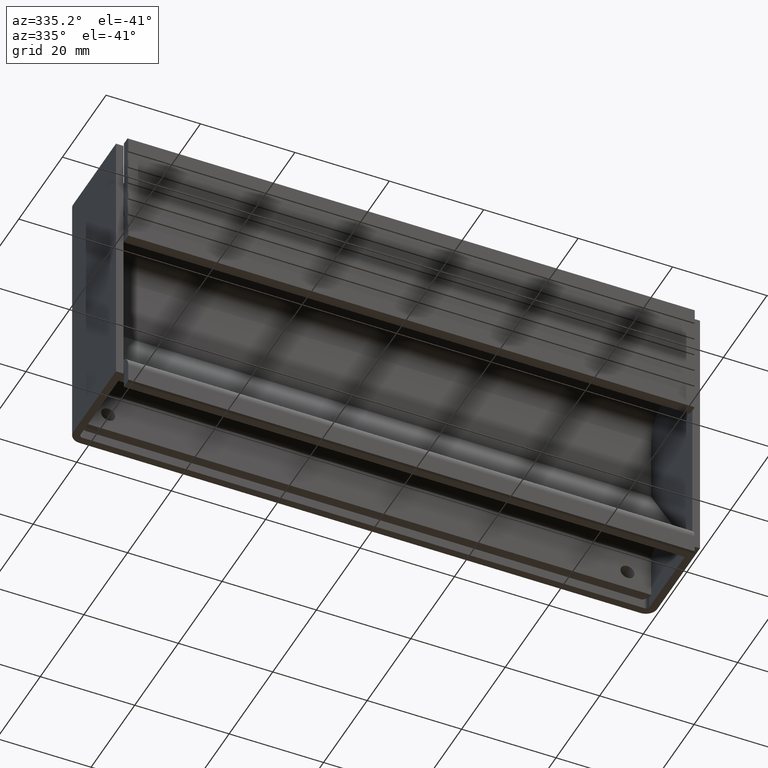
[diagram: clean part render]
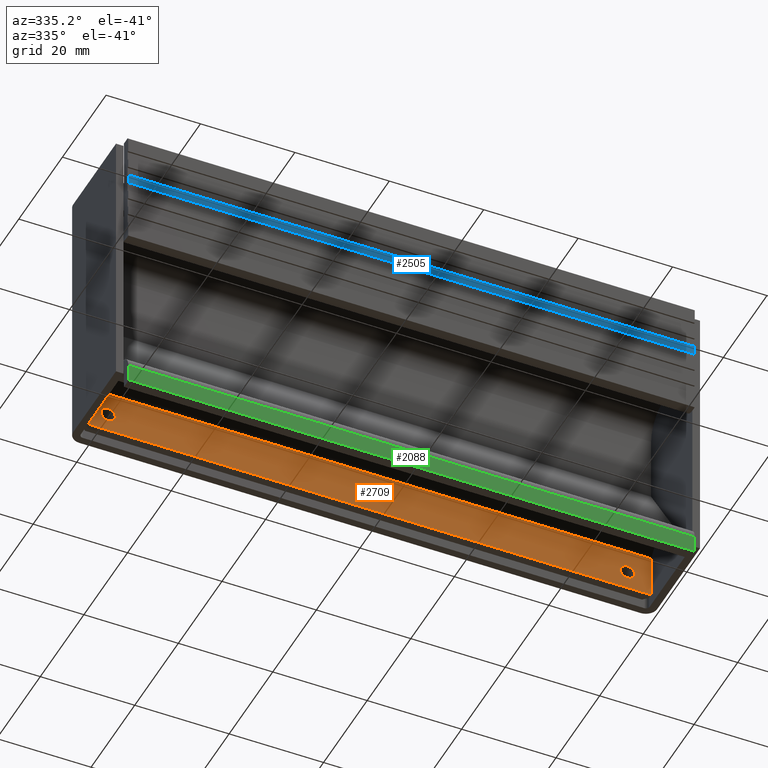
[diagram: same view with three faces highlighted in distinct colors, each labeled with its STEP entity id]
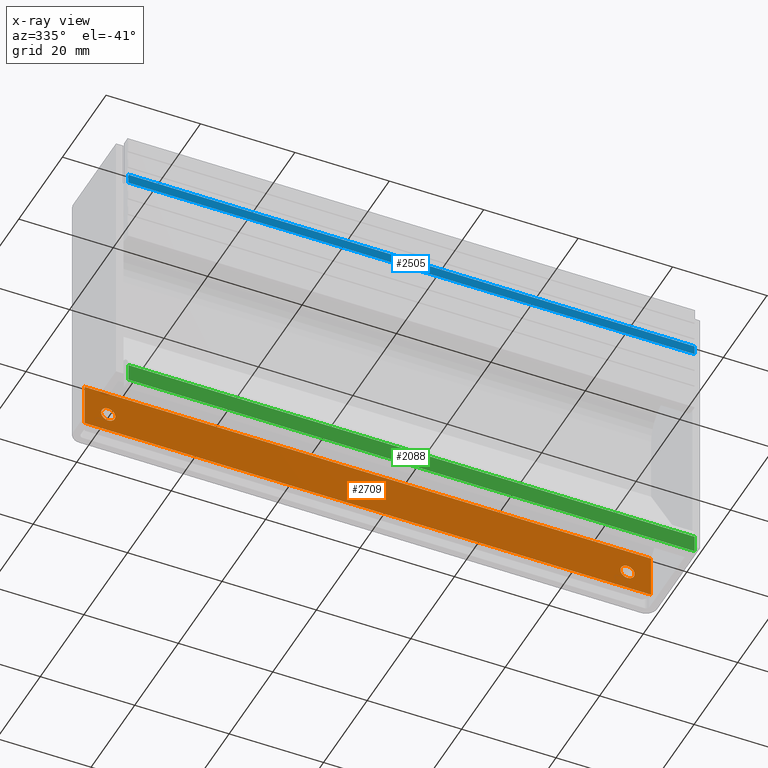
[diagram: x-ray of the same camera — body ghosted, the three highlighted faces saturated]
A machine part, auxiliary view with three faces highlighted in distinct colors.
The next image is the same camera in x-ray (body ghosted, the three faces saturated) — at least one of them is partly hidden behind the body in this view.
Their STEP definitions:

[orange] entity #2709 — the highlighted face is a freeform B-spline surface patch.
#278=CARTESIAN_POINT('',(-53.504623999473040,18.0,8.882311355484024));
#279=VERTEX_POINT('',#278);
#285=CARTESIAN_POINT('',(-55.0,18.0,10.499999999999901));
#286=VERTEX_POINT('',#285);
#287=CARTESIAN_POINT('',(-53.504623999473040,18.0,8.882311355484024));
#288=CARTESIAN_POINT('',(-53.500000000000007,18.0,8.941064838560001));
#289=CARTESIAN_POINT('',(-53.500000000000000,18.0,8.999999999999901));
#290=CARTESIAN_POINT('',(-53.500000000000007,18.000000000000007,10.499999999999901));
#291=CARTESIAN_POINT('',(-55.0,18.0,10.499999999999901));
#299=(BOUNDED_CURVE()B_SPLINE_CURVE(2,(#287,#288,#289,#290,#291),.UNSPECIFIED.,.F.,.U.)B_SPLINE_CURVE_WITH_KNOTS((3,2,3),(0.736331300420894,0.750000000000000,1.0),.UNSPECIFIED.)CURVE()GEOMETRIC_REPRESENTATION_ITEM()RATIONAL_B_SPLINE_CURVE((0.969723355729653,0.983986122333126,1.0,0.707106781186548,1.0))REPRESENTATION_ITEM(''));
#300=EDGE_CURVE('',#279,#286,#299,.T.);
#302=CARTESIAN_POINT('',(-56.495376000526960,18.0,9.117688644515775));
#303=VERTEX_POINT('',#302);
#304=CARTESIAN_POINT('',(-55.0,18.0,10.499999999999901));
#305=CARTESIAN_POINT('',(-56.386585735768264,18.000000000000004,10.499999999999901));
#306=CARTESIAN_POINT('',(-56.495376000526953,18.000000000000004,9.117688644515775));
#314=(BOUNDED_CURVE()B_SPLINE_CURVE(2,(#304,#305,#306),.UNSPECIFIED.,.F.,.U.)B_SPLINE_CURVE_WITH_KNOTS((3,3),(0.0,0.236331300420894),.UNSPECIFIED.)CURVE()GEOMETRIC_REPRESENTATION_ITEM()RATIONAL_B_SPLINE_CURVE((1.0,0.723120658853421,0.969723355729654))REPRESENTATION_ITEM(''));
#315=EDGE_CURVE('',#286,#303,#314,.T.);
#361=CARTESIAN_POINT('',(-55.0,18.0,7.499999999999901));
#362=VERTEX_POINT('',#361);
#363=CARTESIAN_POINT('',(-56.495376000526960,17.999999999999996,9.117688644515775));
#364=CARTESIAN_POINT('',(-56.500000000000000,18.000000000000004,9.058935161439800));
#365=CARTESIAN_POINT('',(-56.500000000000000,18.0,8.999999999999901));
#366=CARTESIAN_POINT('',(-56.500000000000000,18.000000000000007,7.499999999999901));
#367=CARTESIAN_POINT('',(-55.0,18.0,7.499999999999901));
#375=(BOUNDED_CURVE()B_SPLINE_CURVE(2,(#363,#364,#365,#366,#367),.UNSPECIFIED.,.F.,.U.)B_SPLINE_CURVE_WITH_KNOTS((3,2,3),(0.236331300420894,0.250000000000000,0.500000000000000),.UNSPECIFIED.)CURVE()GEOMETRIC_REPRESENTATION_ITEM()RATIONAL_B_SPLINE_CURVE((0.969723355729653,0.983986122333127,1.0,0.707106781186548,1.0))REPRESENTATION_ITEM(''));
#376=EDGE_CURVE('',#303,#362,#375,.T.);
#378=CARTESIAN_POINT('',(-55.0,18.0,7.499999999999901));
#379=CARTESIAN_POINT('',(-53.613414264231757,18.000000000000004,7.499999999999900));
#380=CARTESIAN_POINT('',(-53.504623999473040,18.000000000000004,8.882311355484024));
#388=(BOUNDED_CURVE()B_SPLINE_CURVE(2,(#378,#379,#380),.UNSPECIFIED.,.F.,.U.)B_SPLINE_CURVE_WITH_KNOTS((3,3),(0.500000000000000,0.736331300420893),.UNSPECIFIED.)CURVE()GEOMETRIC_REPRESENTATION_ITEM()RATIONAL_B_SPLINE_CURVE((1.0,0.723120658853422,0.969723355729652))REPRESENTATION_ITEM(''));
#389=EDGE_CURVE('',#362,#279,#388,.T.);
#460=CARTESIAN_POINT('',(56.495376000526960,18.0,8.882311355484024));
#461=VERTEX_POINT('',#460);
#467=CARTESIAN_POINT('',(55.0,18.0,10.499999999999901));
#468=VERTEX_POINT('',#467);
#469=CARTESIAN_POINT('',(56.495376000526953,18.0,8.882311355484024));
#470=CARTESIAN_POINT('',(56.500000000000000,18.0,8.941064838560001));
#471=CARTESIAN_POINT('',(56.500000000000000,18.0,8.999999999999901));
#472=CARTESIAN_POINT('',(56.500000000000000,18.000000000000007,10.499999999999901));
#473=CARTESIAN_POINT('',(55.0,18.0,10.499999999999901));
#481=(BOUNDED_CURVE()B_SPLINE_CURVE(2,(#469,#470,#471,#472,#473),.UNSPECIFIED.,.F.,.U.)B_SPLINE_CURVE_WITH_KNOTS((3,2,3),(0.736331300420894,0.750000000000000,1.0),.UNSPECIFIED.)CURVE()GEOMETRIC_REPRESENTATION_ITEM()RATIONAL_B_SPLINE_CURVE((0.969723355729653,0.983986122333126,1.0,0.707106781186548,1.0))REPRESENTATION_ITEM(''));
#482=EDGE_CURVE('',#461,#468,#481,.T.);
#484=CARTESIAN_POINT('',(53.504623999473040,18.0,9.117688644515777));
#485=VERTEX_POINT('',#484);
#486=CARTESIAN_POINT('',(55.0,18.0,10.499999999999901));
#487=CARTESIAN_POINT('',(53.613414264231743,17.999999999999993,10.499999999999901));
#488=CARTESIAN_POINT('',(53.504623999473040,18.0,9.117688644515777));
#496=(BOUNDED_CURVE()B_SPLINE_CURVE(2,(#486,#487,#488),.UNSPECIFIED.,.F.,.U.)B_SPLINE_CURVE_WITH_KNOTS((3,3),(0.0,0.236331300420894),.UNSPECIFIED.)CURVE()GEOMETRIC_REPRESENTATION_ITEM()RATIONAL_B_SPLINE_CURVE((1.0,0.723120658853421,0.969723355729653))REPRESENTATION_ITEM(''));
#497=EDGE_CURVE('',#468,#485,#496,.T.);
#543=CARTESIAN_POINT('',(55.0,18.0,7.499999999999901));
#544=VERTEX_POINT('',#543);
#545=CARTESIAN_POINT('',(53.504623999473040,17.999999999999996,9.117688644515777));
#546=CARTESIAN_POINT('',(53.500000000000007,17.999999999999996,9.058935161439802));
#547=CARTESIAN_POINT('',(53.500000000000000,18.0,8.999999999999901));
#548=CARTESIAN_POINT('',(53.500000000000007,18.000000000000007,7.499999999999901));
#549=CARTESIAN_POINT('',(55.0,18.0,7.499999999999901));
#557=(BOUNDED_CURVE()B_SPLINE_CURVE(2,(#545,#546,#547,#548,#549),.UNSPECIFIED.,.F.,.U.)B_SPLINE_CURVE_WITH_KNOTS((3,2,3),(0.236331300420894,0.250000000000000,0.500000000000000),.UNSPECIFIED.)CURVE()GEOMETRIC_REPRESENTATION_ITEM()RATIONAL_B_SPLINE_CURVE((0.969723355729653,0.983986122333126,1.0,0.707106781186548,1.0))REPRESENTATION_ITEM(''));
#558=EDGE_CURVE('',#485,#544,#557,.T.);
#560=CARTESIAN_POINT('',(55.0,18.0,7.499999999999901));
#561=CARTESIAN_POINT('',(56.386585735768243,18.000000000000004,7.499999999999900));
#562=CARTESIAN_POINT('',(56.495376000526960,18.000000000000004,8.882311355484024));
#570=(BOUNDED_CURVE()B_SPLINE_CURVE(2,(#560,#561,#562),.UNSPECIFIED.,.F.,.U.)B_SPLINE_CURVE_WITH_KNOTS((3,3),(0.500000000000000,0.736331300420893),.UNSPECIFIED.)CURVE()GEOMETRIC_REPRESENTATION_ITEM()RATIONAL_B_SPLINE_CURVE((1.0,0.723120658853422,0.969723355729652))REPRESENTATION_ITEM(''));
#571=EDGE_CURVE('',#544,#461,#570,.T.);
#1319=CARTESIAN_POINT('',(60.0,18.0,14.223929999999999));
#1320=VERTEX_POINT('',#1319);
#1326=CARTESIAN_POINT('',(60.0,18.0,5.0));
#1327=VERTEX_POINT('',#1326);
#1328=CARTESIAN_POINT('',(60.0,18.0,14.223929999999999));
#1329=CARTESIAN_POINT('',(60.0,18.0,5.0));
#1330=QUASI_UNIFORM_CURVE('',1,(#1328,#1329),.UNSPECIFIED.,.F.,.U.);
#1331=EDGE_CURVE('',#1320,#1327,#1330,.T.);
#1360=CARTESIAN_POINT('',(-60.0,18.0,5.0));
#1361=VERTEX_POINT('',#1360);
#1367=CARTESIAN_POINT('',(-60.0,18.0,14.223929999999999));
#1368=VERTEX_POINT('',#1367);
#1369=CARTESIAN_POINT('',(-60.0,18.0,14.223929999999999));
#1370=CARTESIAN_POINT('',(-60.0,18.0,5.0));
#1371=QUASI_UNIFORM_CURVE('',1,(#1369,#1370),.UNSPECIFIED.,.F.,.U.);
#1372=EDGE_CURVE('',#1368,#1361,#1371,.T.);
#1938=CARTESIAN_POINT('',(-60.0,18.0,5.0));
#1939=CARTESIAN_POINT('',(60.0,18.0,5.0));
#1940=QUASI_UNIFORM_CURVE('',1,(#1938,#1939),.UNSPECIFIED.,.F.,.U.);
#1941=EDGE_CURVE('',#1361,#1327,#1940,.T.);
#1960=CARTESIAN_POINT('',(-60.0,18.0,14.223929999999999));
#1961=CARTESIAN_POINT('',(60.0,18.0,14.223929999999999));
#1962=QUASI_UNIFORM_CURVE('',1,(#1960,#1961),.UNSPECIFIED.,.F.,.U.);
#1963=EDGE_CURVE('',#1368,#1320,#1962,.T.);
#2686=CARTESIAN_POINT('',(-65.993999767416696,18.0,14.684665718560510));
#2687=CARTESIAN_POINT('',(-65.993999767416696,18.0,4.539264446376211));
#2688=CARTESIAN_POINT('',(65.994002986067528,18.0,14.684665718560510));
#2689=CARTESIAN_POINT('',(65.994002986067528,18.0,4.539264446376211));
#2690=B_SPLINE_SURFACE_WITH_KNOTS('',1,1,((#2686,#2688),(#2687,#2689)),.UNSPECIFIED.,.F.,.F.,.U.,(2,2),(2,2),(0.0,10.145401272184300),(0.0,131.988002753484210),.UNSPECIFIED.);
#2691=ORIENTED_EDGE('',*,*,#1331,.F.);
#2692=ORIENTED_EDGE('',*,*,#1963,.F.);
#2693=ORIENTED_EDGE('',*,*,#1372,.T.);
#2694=ORIENTED_EDGE('',*,*,#1941,.T.);
#2695=EDGE_LOOP('',(#2691,#2692,#2693,#2694));
#2696=FACE_OUTER_BOUND('',#2695,.T.);
#2697=ORIENTED_EDGE('',*,*,#571,.F.);
#2698=ORIENTED_EDGE('',*,*,#558,.F.);
#2699=ORIENTED_EDGE('',*,*,#497,.F.);
#2700=ORIENTED_EDGE('',*,*,#482,.F.);
#2701=EDGE_LOOP('',(#2697,#2698,#2699,#2700));
#2702=FACE_BOUND('',#2701,.T.);
#2703=ORIENTED_EDGE('',*,*,#389,.F.);
#2704=ORIENTED_EDGE('',*,*,#376,.F.);
#2705=ORIENTED_EDGE('',*,*,#315,.F.);
#2706=ORIENTED_EDGE('',*,*,#300,.F.);
#2707=EDGE_LOOP('',(#2703,#2704,#2705,#2706));
#2708=FACE_BOUND('',#2707,.T.);
#2709=ADVANCED_FACE('',(#2696,#2702,#2708),#2690,.T.);

[blue] entity #2505 — the highlighted face is a freeform B-spline surface patch.
#1052=CARTESIAN_POINT('',(60.0,-2.0,52.500000000000000));
#1053=VERTEX_POINT('',#1052);
#1059=CARTESIAN_POINT('',(60.0,-2.0,50.500000000000000));
#1060=VERTEX_POINT('',#1059);
#1061=CARTESIAN_POINT('',(60.0,-2.0,52.500000000000000));
#1062=CARTESIAN_POINT('',(60.0,-2.0,50.500000000000000));
#1063=QUASI_UNIFORM_CURVE('',1,(#1061,#1062),.UNSPECIFIED.,.F.,.U.);
#1064=EDGE_CURVE('',#1053,#1060,#1063,.T.);
#1627=CARTESIAN_POINT('',(-60.0,-2.0,50.500000000000000));
#1628=VERTEX_POINT('',#1627);
#1634=CARTESIAN_POINT('',(-60.0,-2.0,52.500000000000000));
#1635=VERTEX_POINT('',#1634);
#1636=CARTESIAN_POINT('',(-60.0,-2.0,52.500000000000000));
#1637=CARTESIAN_POINT('',(-60.0,-2.0,50.500000000000000));
#1638=QUASI_UNIFORM_CURVE('',1,(#1636,#1637),.UNSPECIFIED.,.F.,.U.);
#1639=EDGE_CURVE('',#1635,#1628,#1638,.T.);
#2480=CARTESIAN_POINT('',(-60.0,-2.0,50.500000000000000));
#2481=CARTESIAN_POINT('',(60.0,-2.0,50.500000000000000));
#2482=QUASI_UNIFORM_CURVE('',1,(#2480,#2481),.UNSPECIFIED.,.F.,.U.);
#2483=EDGE_CURVE('',#1628,#1060,#2482,.T.);
#2490=CARTESIAN_POINT('',(-65.993999767416710,-2.0,52.599899996123611));
#2491=CARTESIAN_POINT('',(-65.993999767416710,-2.0,50.400099950232189));
#2492=CARTESIAN_POINT('',(65.994002986067542,-2.0,52.599899996123611));
#2493=CARTESIAN_POINT('',(65.994002986067542,-2.0,50.400099950232203));
#2494=B_SPLINE_SURFACE_WITH_KNOTS('',1,1,((#2490,#2492),(#2491,#2493)),.UNSPECIFIED.,.F.,.F.,.U.,(2,2),(2,2),(0.0,2.199800045891422),(0.0,131.988002753484210),.UNSPECIFIED.);
#2495=ORIENTED_EDGE('',*,*,#1064,.F.);
#2496=CARTESIAN_POINT('',(-60.0,-2.0,52.500000000000000));
#2497=CARTESIAN_POINT('',(60.0,-2.0,52.500000000000000));
#2498=QUASI_UNIFORM_CURVE('',1,(#2496,#2497),.UNSPECIFIED.,.F.,.U.);
#2499=EDGE_CURVE('',#1635,#1053,#2498,.T.);
#2500=ORIENTED_EDGE('',*,*,#2499,.F.);
#2501=ORIENTED_EDGE('',*,*,#1639,.T.);
#2502=ORIENTED_EDGE('',*,*,#2483,.T.);
#2503=EDGE_LOOP('',(#2495,#2500,#2501,#2502));
#2504=FACE_OUTER_BOUND('',#2503,.T.);
#2505=ADVANCED_FACE('',(#2504),#2494,.T.);

[green] entity #2088 — the highlighted face is a freeform B-spline surface patch.
#1247=CARTESIAN_POINT('',(60.0,-2.0,4.0));
#1248=VERTEX_POINT('',#1247);
#1262=CARTESIAN_POINT('',(60.0,-2.0,0.299999999999912));
#1263=VERTEX_POINT('',#1262);
#1264=CARTESIAN_POINT('',(60.0,-2.0,4.0));
#1265=CARTESIAN_POINT('',(60.0,-2.0,0.299999999999912));
#1266=QUASI_UNIFORM_CURVE('',1,(#1264,#1265),.UNSPECIFIED.,.F.,.U.);
#1267=EDGE_CURVE('',#1248,#1263,#1266,.T.);
#1424=CARTESIAN_POINT('',(-60.0,-2.0,0.299999999999912));
#1425=VERTEX_POINT('',#1424);
#1431=CARTESIAN_POINT('',(-60.0,-2.0,4.0));
#1432=VERTEX_POINT('',#1431);
#1433=CARTESIAN_POINT('',(-60.0,-2.0,4.0));
#1434=CARTESIAN_POINT('',(-60.0,-2.0,0.299999999999912));
#1435=QUASI_UNIFORM_CURVE('',1,(#1433,#1434),.UNSPECIFIED.,.F.,.U.);
#1436=EDGE_CURVE('',#1432,#1425,#1435,.T.);
#2063=CARTESIAN_POINT('',(-60.0,-2.0,0.299999999999912));
#2064=CARTESIAN_POINT('',(60.0,-2.0,0.299999999999912));
#2065=QUASI_UNIFORM_CURVE('',1,(#2063,#2064),.UNSPECIFIED.,.F.,.U.);
#2066=EDGE_CURVE('',#1425,#1263,#2065,.T.);
#2073=CARTESIAN_POINT('',(-65.993999767416696,-2.0,4.184814992828685));
#2074=CARTESIAN_POINT('',(-65.993999767416696,-2.0,0.115184907929492));
#2075=CARTESIAN_POINT('',(65.994002986067528,-2.0,4.184814992828685));
#2076=CARTESIAN_POINT('',(65.994002986067528,-2.0,0.115184907929492));
#2077=B_SPLINE_SURFACE_WITH_KNOTS('',1,1,((#2073,#2075),(#2074,#2076)),.UNSPECIFIED.,.F.,.F.,.U.,(2,2),(2,2),(0.0,4.069630084899194),(0.0,131.988002753484210),.UNSPECIFIED.);
#2078=ORIENTED_EDGE('',*,*,#1267,.F.);
#2079=CARTESIAN_POINT('',(-60.0,-2.0,4.0));
#2080=CARTESIAN_POINT('',(60.0,-2.0,4.0));
#2081=QUASI_UNIFORM_CURVE('',1,(#2079,#2080),.UNSPECIFIED.,.F.,.U.);
#2082=EDGE_CURVE('',#1432,#1248,#2081,.T.);
#2083=ORIENTED_EDGE('',*,*,#2082,.F.);
#2084=ORIENTED_EDGE('',*,*,#1436,.T.);
#2085=ORIENTED_EDGE('',*,*,#2066,.T.);
#2086=EDGE_LOOP('',(#2078,#2083,#2084,#2085));
#2087=FACE_OUTER_BOUND('',#2086,.T.);
#2088=ADVANCED_FACE('',(#2087),#2077,.T.);